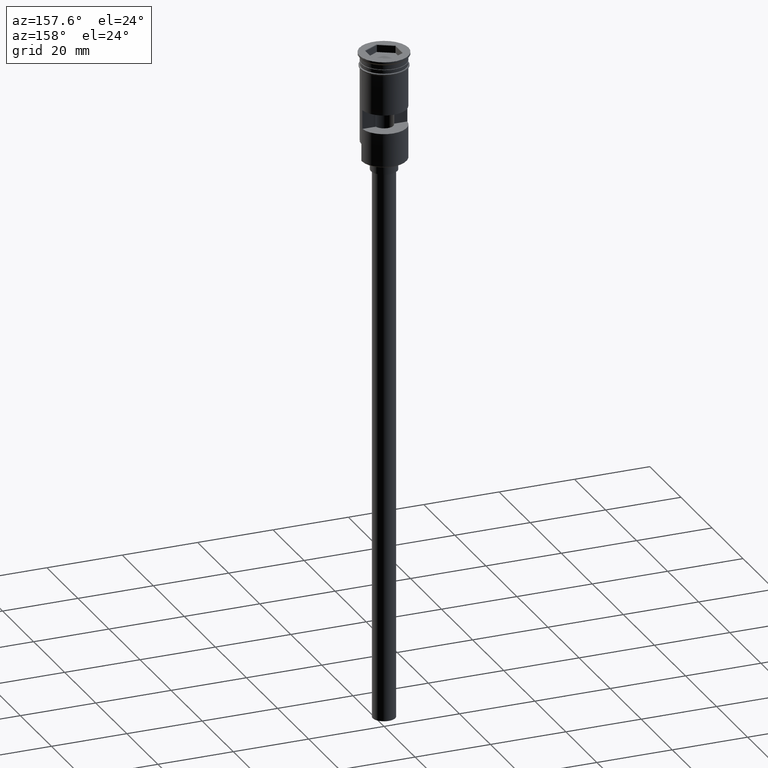
[diagram: clean part render]
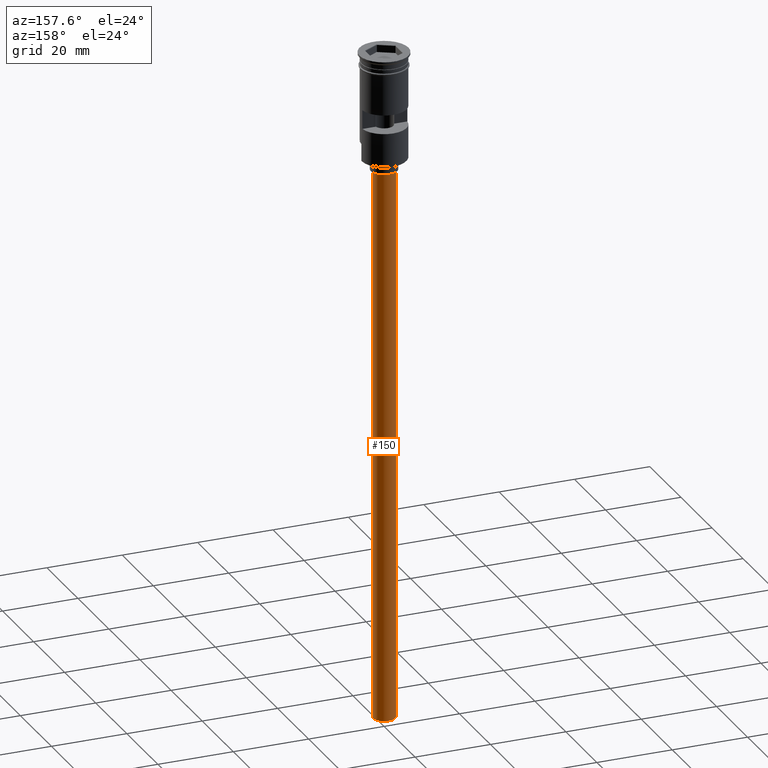
[diagram: same view with one face highlighted and labeled with its STEP entity id]
A machine part, auxiliary view. The second image highlights one B-rep face of the part: STEP entity #150.
In plain terms, the highlighted cylindrical surface (edge-blend (fillet) strip) has radius 3 mm, axis along (-0, -0, 1).
Its self-contained STEP definition (entity closure, byte-faithful):
#14 = ORIENTED_EDGE ( 'NONE', *, *, #1015, .T. ) ;
#18 = CARTESIAN_POINT ( 'NONE',  ( -3.000000000000000444, 3.673940397442060361E-16, -31.50000000000000000 ) ) ;
#21 = CARTESIAN_POINT ( 'NONE',  ( 3.000000000000000444, 0.000000000000000000, -178.5000000000000000 ) ) ;
#30 = CARTESIAN_POINT ( 'NONE',  ( -3.000000000000000444, 3.673940397442060361E-16, -178.5000000000000000 ) ) ;
#142 = CARTESIAN_POINT ( 'NONE',  ( 3.000000000000000444, 0.000000000000000000, -31.50000000000000000 ) ) ;
#150 = ADVANCED_FACE ( 'NONE', ( #1589 ), #592, .T. ) ;
#156 = CIRCLE ( 'NONE', #1348, 3.000000000000000444 ) ;
#202 = DIRECTION ( 'NONE',  ( -0.000000000000000000, -0.000000000000000000, 1.000000000000000000 ) ) ;
#337 = CARTESIAN_POINT ( 'NONE',  ( 0.000000000000000000, 0.000000000000000000, -178.5000000000000000 ) ) ;
#362 = DIRECTION ( 'NONE',  ( -1.000000000000000000, 0.000000000000000000, 0.000000000000000000 ) ) ;
#432 = EDGE_CURVE ( 'NONE', #1482, #1580, #1379, .T. ) ;
#450 = EDGE_CURVE ( 'NONE', #532, #1603, #1130, .T. ) ;
#492 = DIRECTION ( 'NONE',  ( -0.000000000000000000, -0.000000000000000000, 1.000000000000000000 ) ) ;
#511 = VECTOR ( 'NONE', #492, 1000.000000000000000 ) ;
#532 = VERTEX_POINT ( 'NONE', #795 ) ;
#564 = ORIENTED_EDGE ( 'NONE', *, *, #432, .F. ) ;
#567 = EDGE_CURVE ( 'NONE', #532, #1482, #156, .T. ) ;
#591 = CARTESIAN_POINT ( 'NONE',  ( 0.000000000000000000, 0.000000000000000000, -31.50000000000000000 ) ) ;
#592 = CYLINDRICAL_SURFACE ( 'NONE', #1097, 3.000000000000000444 ) ;
#709 = DIRECTION ( 'NONE',  ( -1.000000000000000000, 0.000000000000000000, 0.000000000000000000 ) ) ;
#795 = CARTESIAN_POINT ( 'NONE',  ( -3.000000000000000444, 3.673940397442060361E-16, -178.5000000000000000 ) ) ;
#818 = EDGE_LOOP ( 'NONE', ( #1560, #1106, #14, #564 ) ) ;
#929 = CIRCLE ( 'NONE', #1483, 3.000000000000000444 ) ;
#1005 = DIRECTION ( 'NONE',  ( -0.000000000000000000, -0.000000000000000000, 1.000000000000000000 ) ) ;
#1015 = EDGE_CURVE ( 'NONE', #1603, #1580, #929, .T. ) ;
#1082 = DIRECTION ( 'NONE',  ( 0.000000000000000000, 0.000000000000000000, -1.000000000000000000 ) ) ;
#1097 = AXIS2_PLACEMENT_3D ( 'NONE', #1325, #202, #1314 ) ;
#1106 = ORIENTED_EDGE ( 'NONE', *, *, #450, .T. ) ;
#1130 = LINE ( 'NONE', #30, #1267 ) ;
#1267 = VECTOR ( 'NONE', #1005, 1000.000000000000000 ) ;
#1314 = DIRECTION ( 'NONE',  ( 1.000000000000000000, 0.000000000000000000, 0.000000000000000000 ) ) ;
#1316 = CARTESIAN_POINT ( 'NONE',  ( 3.000000000000000444, 0.000000000000000000, -178.5000000000000000 ) ) ;
#1325 = CARTESIAN_POINT ( 'NONE',  ( 0.000000000000000000, 0.000000000000000000, -178.5000000000000000 ) ) ;
#1348 = AXIS2_PLACEMENT_3D ( 'NONE', #337, #1439, #709 ) ;
#1379 = LINE ( 'NONE', #21, #511 ) ;
#1439 = DIRECTION ( 'NONE',  ( 0.000000000000000000, 0.000000000000000000, -1.000000000000000000 ) ) ;
#1482 = VERTEX_POINT ( 'NONE', #1316 ) ;
#1483 = AXIS2_PLACEMENT_3D ( 'NONE', #591, #1082, #362 ) ;
#1560 = ORIENTED_EDGE ( 'NONE', *, *, #567, .F. ) ;
#1580 = VERTEX_POINT ( 'NONE', #142 ) ;
#1589 = FACE_OUTER_BOUND ( 'NONE', #818, .T. ) ;
#1603 = VERTEX_POINT ( 'NONE', #18 ) ;